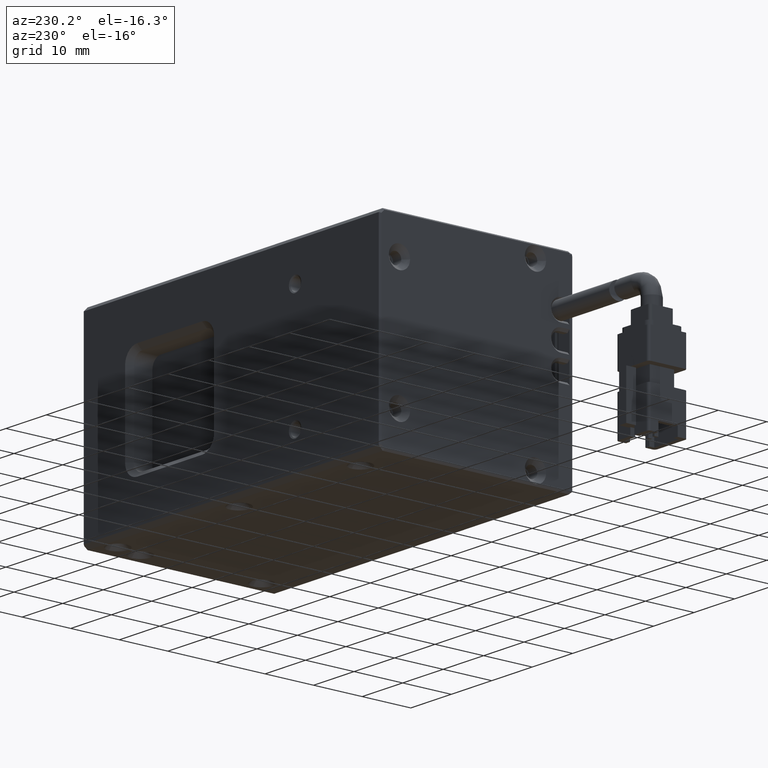
[diagram: clean part render]
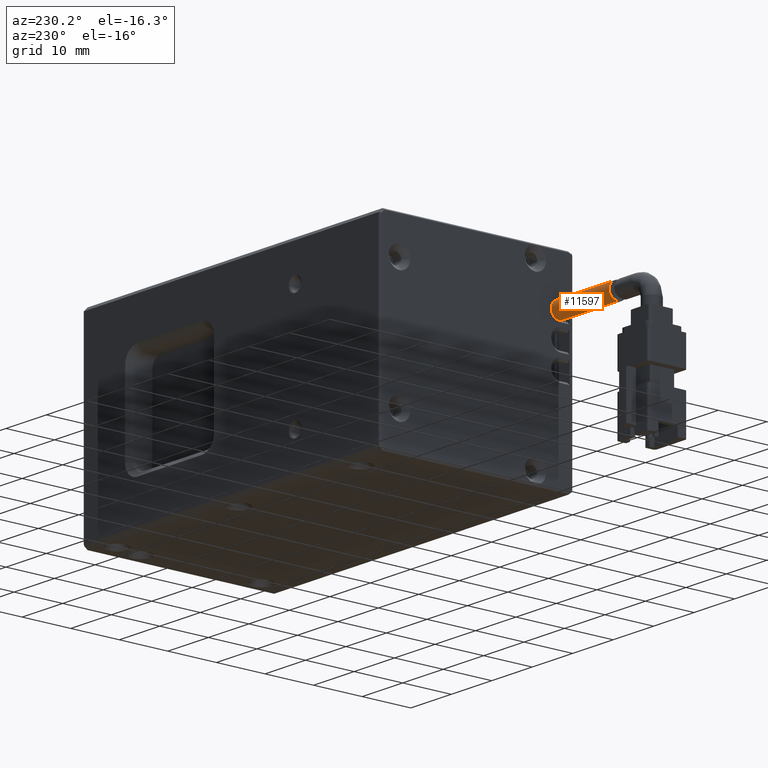
[diagram: same view with one face highlighted and labeled with its STEP entity id]
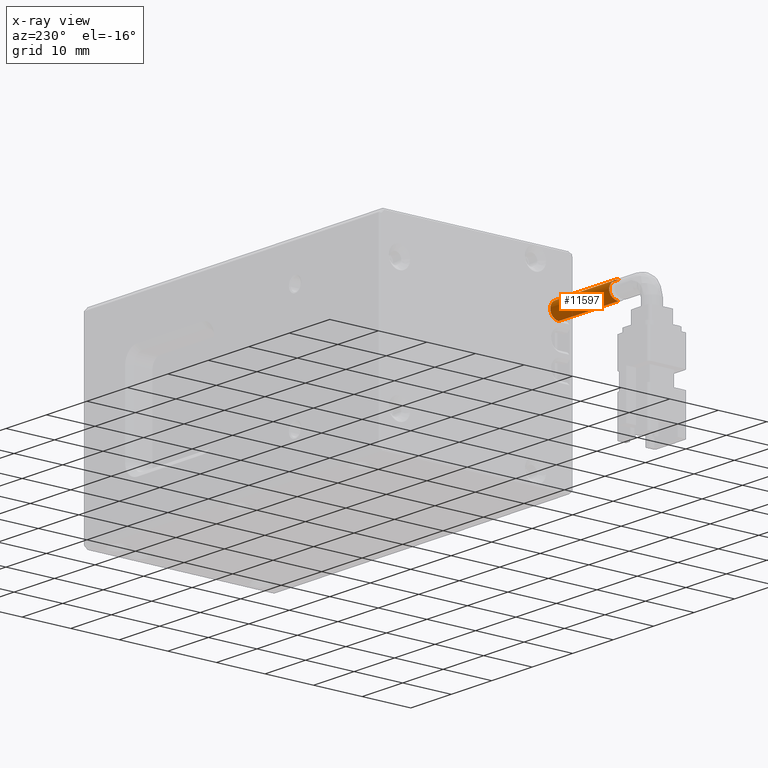
[diagram: x-ray of the same camera — body ghosted, the highlighted face saturated]
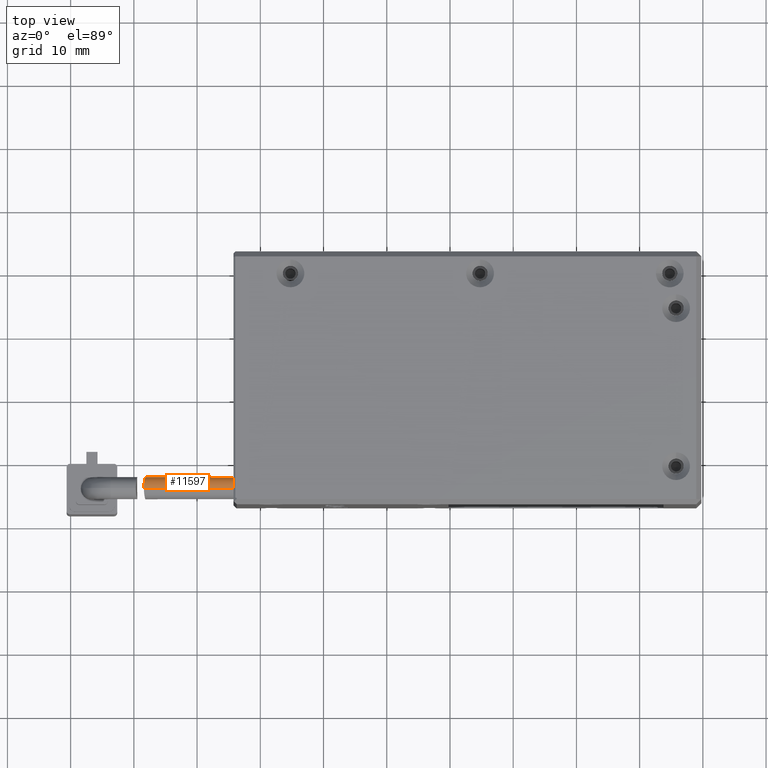
[diagram: same view with one face highlighted and labeled with its STEP entity id]
A machine part, auxiliary view. The second image highlights one B-rep face of the part: STEP entity #11597.
The next image is the same camera in x-ray: the body ghosted, the highlighted face saturated — about 0% of this face is hidden behind the body in this view.
A second angle (top view) of the same face is appended — the face is thin or edge-on in the first view.
In plain terms, the highlighted cylindrical surface (edge-blend (fillet) strip) has radius 1.75 mm, axis along (1, -0, 0).
Its self-contained STEP definition (entity closure, byte-faithful):
#973 = CARTESIAN_POINT ( 'NONE',  ( -58.37656873499414400, -4.002537710552412700, 28.25000000000954600 ) ) ;
#1206 = CARTESIAN_POINT ( 'NONE',  ( -58.22906760562877100, -2.721062593896712100, 28.92250205533159100 ) ) ;
#1322 = CARTESIAN_POINT ( 'NONE',  ( -58.37860451522381300, -3.340512151029134900, 31.57167475215998900 ) ) ;
#1739 = DIRECTION ( 'NONE',  ( -1.000000000000000000, 7.511771070445245000E-017, -1.110223024625156000E-016 ) ) ;
#2994 = CYLINDRICAL_SURFACE ( 'NONE', #33634, 1.749999999999998000 ) ;
#3047 = VECTOR ( 'NONE', #22609, 1000.000000000000000 ) ;
#3853 = VERTEX_POINT ( 'NONE', #13275 ) ;
#3862 = CARTESIAN_POINT ( 'NONE',  ( -58.17771392161786500, -2.415136934332507800, 29.53875052921506800 ) ) ;
#3988 = CARTESIAN_POINT ( 'NONE',  ( -58.41368922833111600, -3.886517608140247900, 31.75000000000954300 ) ) ;
#5523 = ORIENTED_EDGE ( 'NONE', *, *, #17942, .F. ) ;
#6389 = FACE_OUTER_BOUND ( 'NONE', #9568, .T. ) ;
#6503 = CARTESIAN_POINT ( 'NONE',  ( -58.37656873499413700, -4.118613977539928900, 28.25000000000954300 ) ) ;
#6627 = CARTESIAN_POINT ( 'NONE',  ( -58.18881946465274500, -2.368556474784463200, 30.11371947442062300 ) ) ;
#9080 = CIRCLE ( 'NONE', #20445, 1.749999999999998000 ) ;
#9172 = CARTESIAN_POINT ( 'NONE',  ( -58.37311142066389600, -3.888530506213401700, 28.26143297391719100 ) ) ;
#9266 = CARTESIAN_POINT ( 'NONE',  ( -58.21425249015510400, -2.424712852106644800, 30.45416755124101700 ) ) ;
#9568 = EDGE_LOOP ( 'NONE', ( #30388, #28651, #22917, #5523 ) ) ;
#10315 = CARTESIAN_POINT ( 'NONE',  ( -63.63284929583379300, -4.118613977539928900, 30.00000000000953900 ) ) ;
#10665 = EDGE_CURVE ( 'NONE', #11122, #17758, #9080, .T. ) ;
#11044 = CARTESIAN_POINT ( 'NONE',  ( -43.63284929583384300, -4.118613977539930600, 28.25000000000954300 ) ) ;
#11122 = VERTEX_POINT ( 'NONE', #11941 ) ;
#11563 = VECTOR ( 'NONE', #32737, 1000.000000000000000 ) ;
#11597 = ADVANCED_FACE ( 'NONE', ( #6389 ), #2994, .T. ) ;
#11773 = CARTESIAN_POINT ( 'NONE',  ( -58.35059468708593000, -3.553162423599037100, 28.33991944950720300 ) ) ;
#11900 = CARTESIAN_POINT ( 'NONE',  ( -58.26239400193495000, -2.589570830775342900, 30.88164290911110000 ) ) ;
#11941 = CARTESIAN_POINT ( 'NONE',  ( -43.63284929583384300, -4.118613977539929700, 31.75000000000953500 ) ) ;
#12792 = B_SPLINE_CURVE_WITH_KNOTS ( 'NONE', 3,
 ( #6503, #973, #9172, #27640, #11773, #30317, #14419, #33008, #17087, #1206, #19771, #3862, #22437, #6627, #25062, #9266, #27748, #11900, #30432, #14520, #33129, #17210, #1322, #19886, #3988, #22553 ),
 .UNSPECIFIED., .F., .F.,
 ( 4, 2, 2, 2, 2, 2, 2, 2, 2, 2, 2, 2, 4 ),
 ( 0.005490571999675025600, 0.005833718808239112700, 0.006176865616803198900, 0.006520012425367285200, 0.006863159233931372300, 0.007549452851059537000, 0.008235746468187702500, 0.008578893276751785300, 0.008922040085315868100, 0.009608333702444033600, 0.009951480511008116400, 0.01029462731957219900, 0.01098092093670037500 ),
 .UNSPECIFIED. ) ;
#13275 = CARTESIAN_POINT ( 'NONE',  ( -58.37656873499413700, -4.118613977539928900, 28.25000000000954300 ) ) ;
#14132 = CARTESIAN_POINT ( 'NONE',  ( -63.63284929583379300, -4.118613977539928900, 31.75000000000953500 ) ) ;
#14419 = CARTESIAN_POINT ( 'NONE',  ( -58.31411461971295300, -3.241512402697540400, 28.48137794374708400 ) ) ;
#14520 = CARTESIAN_POINT ( 'NONE',  ( -58.33210375122852300, -2.960871537340852700, 31.31730249409939800 ) ) ;
#14882 = CARTESIAN_POINT ( 'NONE',  ( -58.41368922833112300, -4.118613977539929700, 31.75000000000954300 ) ) ;
#15462 = DIRECTION ( 'NONE',  ( 1.000000000000000000, -7.511771070445245000E-017, 1.110223024625156000E-016 ) ) ;
#17087 = CARTESIAN_POINT ( 'NONE',  ( -58.27090828849594600, -2.962250857023716500, 28.68157773980928100 ) ) ;
#17141 = CARTESIAN_POINT ( 'NONE',  ( -63.63284929583379300, -4.118613977539928900, 28.25000000000954300 ) ) ;
#17210 = CARTESIAN_POINT ( 'NONE',  ( -58.36811085193971100, -3.237935655440460400, 31.51653809685102600 ) ) ;
#17614 = CARTESIAN_POINT ( 'NONE',  ( -43.63284929583384300, -4.118613977539930600, 30.00000000000953900 ) ) ;
#17758 = VERTEX_POINT ( 'NONE', #11044 ) ;
#17942 = EDGE_CURVE ( 'NONE', #3853, #17758, #24192, .T. ) ;
#19771 = CARTESIAN_POINT ( 'NONE',  ( -58.20440748815801200, -2.590404724057966800, 29.11729869797413200 ) ) ;
#19886 = CARTESIAN_POINT ( 'NONE',  ( -58.40415010107853500, -3.657567174366422000, 31.70362899751667000 ) ) ;
#20300 = DIRECTION ( 'NONE',  ( 0.0000000000000000000, 0.0000000000000000000, -1.000000000000000000 ) ) ;
#20445 = AXIS2_PLACEMENT_3D ( 'NONE', #17614, #1739, #20300 ) ;
#22437 = CARTESIAN_POINT ( 'NONE',  ( -58.17546873959613400, -2.368729649055095100, 29.76991661476127900 ) ) ;
#22553 = CARTESIAN_POINT ( 'NONE',  ( -58.41368922833112300, -4.118613977539929700, 31.75000000000954300 ) ) ;
#22609 = DIRECTION ( 'NONE',  ( 1.000000000000000000, -7.511771070445245000E-017, 1.110223024625156000E-016 ) ) ;
#22917 = ORIENTED_EDGE ( 'NONE', *, *, #10665, .T. ) ;
#24192 = LINE ( 'NONE', #17141, #3047 ) ;
#25062 = CARTESIAN_POINT ( 'NONE',  ( -58.19602304168775900, -2.380023053715256700, 30.22993648456608500 ) ) ;
#25605 = LINE ( 'NONE', #14132, #11563 ) ;
#26233 = DIRECTION ( 'NONE',  ( 0.0000000000000000000, 0.0000000000000000000, -1.000000000000000000 ) ) ;
#27640 = CARTESIAN_POINT ( 'NONE',  ( -58.36019883982276500, -3.664434340301232100, 28.30610668426885500 ) ) ;
#27748 = CARTESIAN_POINT ( 'NONE',  ( -58.22528587286714000, -2.457768887184122300, 30.56328090399991700 ) ) ;
#28651 = ORIENTED_EDGE ( 'NONE', *, *, #29808, .T. ) ;
#29808 = EDGE_CURVE ( 'NONE', #31000, #11122, #25605, .T. ) ;
#30317 = CARTESIAN_POINT ( 'NONE',  ( -58.32750791485536000, -3.341733141571162400, 28.42772169744514700 ) ) ;
#30388 = ORIENTED_EDGE ( 'NONE', *, *, #30883, .T. ) ;
#30432 = CARTESIAN_POINT ( 'NONE',  ( -58.29147753220220100, -2.717839836674150500, 31.07375298900444700 ) ) ;
#30883 = EDGE_CURVE ( 'NONE', #3853, #31000, #12792, .T. ) ;
#31000 = VERTEX_POINT ( 'NONE', #14882 ) ;
#32737 = DIRECTION ( 'NONE',  ( 1.000000000000000000, -7.511771070445245000E-017, 1.110223024625156000E-016 ) ) ;
#33008 = CARTESIAN_POINT ( 'NONE',  ( -58.28582176710047200, -3.051738861426385600, 28.60813161220288200 ) ) ;
#33129 = CARTESIAN_POINT ( 'NONE',  ( -58.34490175777750000, -3.048726606429890600, 31.38954061450297000 ) ) ;
#33634 = AXIS2_PLACEMENT_3D ( 'NONE', #10315, #15462, #26233 ) ;